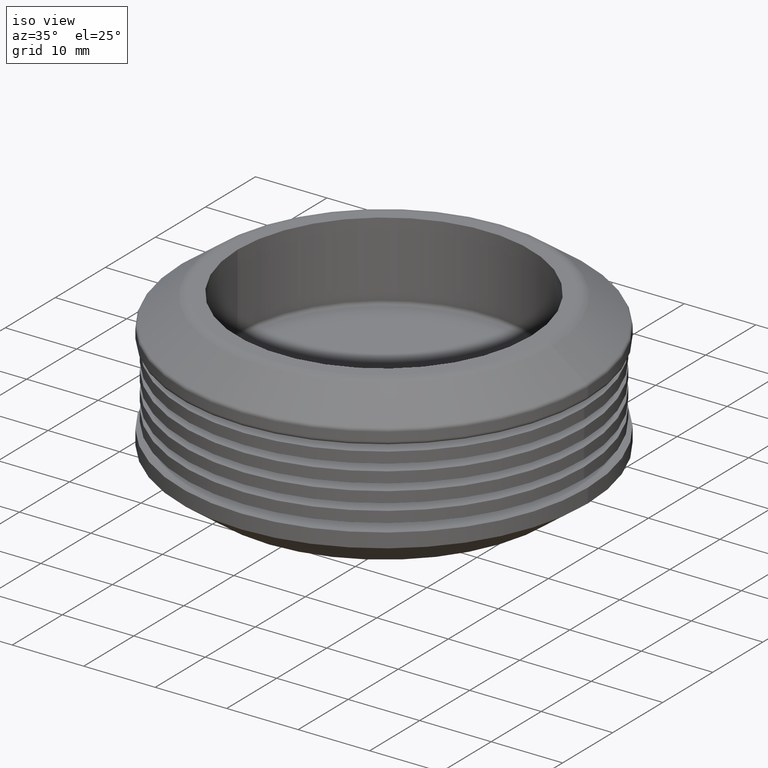
[diagram: clean part render]
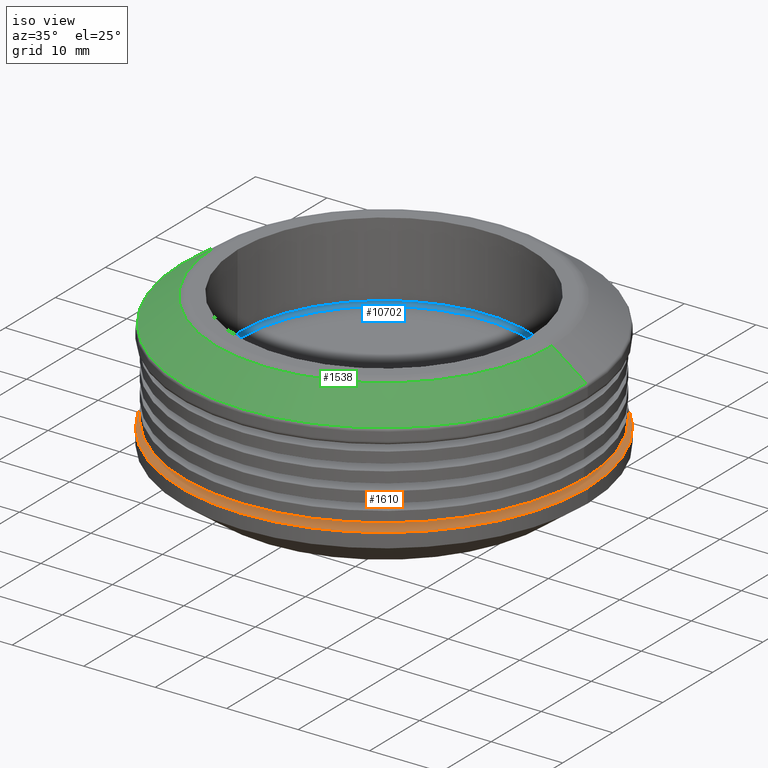
[diagram: same view with three faces highlighted in distinct colors, each labeled with its STEP entity id]
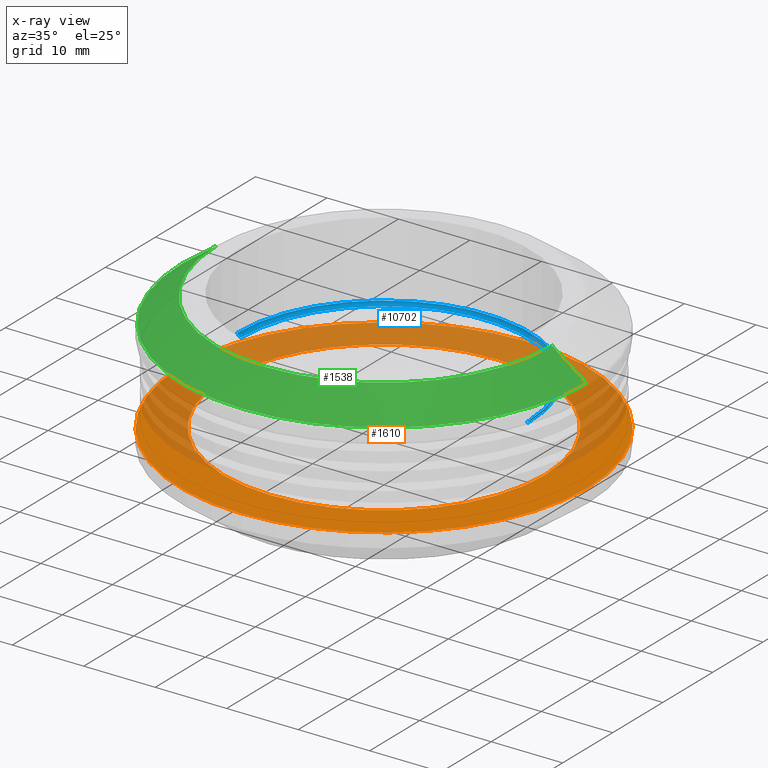
[diagram: x-ray of the same camera — body ghosted, the three highlighted faces saturated]
A machine part, iso view with three faces highlighted in distinct colors.
The next image is the same camera in x-ray (body ghosted, the three faces saturated) — at least one of them is partly hidden behind the body in this view.
Their STEP definitions:

[orange] entity #1610 — the highlighted planar face has unit normal (0, 0, 1).
#51 = CARTESIAN_POINT ( 'NONE',  ( -28.50000000000000000, 0.0000000000000000000, -4.999999999999999100 ) ) ;
#499 = DIRECTION ( 'NONE',  ( -0.0000000000000000000, -0.0000000000000000000, -1.000000000000000000 ) ) ;
#830 = CARTESIAN_POINT ( 'NONE',  ( 0.0000000000000000000, 0.0000000000000000000, -4.999999999999999100 ) ) ;
#891 = ORIENTED_EDGE ( 'NONE', *, *, #6009, .F. ) ;
#933 = CIRCLE ( 'NONE', #14101, 22.50000000000000000 ) ;
#1235 = VERTEX_POINT ( 'NONE', #51 ) ;
#1339 = ORIENTED_EDGE ( 'NONE', *, *, #11088, .F. ) ;
#1484 = CARTESIAN_POINT ( 'NONE',  ( 0.0000000000000000000, 0.0000000000000000000, -4.999999999999999100 ) ) ;
#1610 = ADVANCED_FACE ( 'NONE', ( #1790, #4513 ), #9835, .T. ) ;
#1617 = DIRECTION ( 'NONE',  ( -1.000000000000000000, 0.0000000000000000000, 0.0000000000000000000 ) ) ;
#1741 = CARTESIAN_POINT ( 'NONE',  ( 28.50000000000000000, 3.490243377569956500E-015, -4.999999999999999100 ) ) ;
#1790 = FACE_BOUND ( 'NONE', #1848, .T. ) ;
#1797 = VERTEX_POINT ( 'NONE', #8057 ) ;
#1848 = EDGE_LOOP ( 'NONE', ( #5798, #12766 ) ) ;
#2405 = DIRECTION ( 'NONE',  ( -0.0000000000000000000, -0.0000000000000000000, -1.000000000000000000 ) ) ;
#2666 = DIRECTION ( 'NONE',  ( -1.000000000000000000, 0.0000000000000000000, 0.0000000000000000000 ) ) ;
#3496 = CIRCLE ( 'NONE', #14279, 28.50000000000000000 ) ;
#3521 = CARTESIAN_POINT ( 'NONE',  ( 22.50000000000000000, 2.755455298081544800E-015, -4.999999999999996400 ) ) ;
#3625 = DIRECTION ( 'NONE',  ( -1.000000000000000000, 0.0000000000000000000, 0.0000000000000000000 ) ) ;
#4513 = FACE_OUTER_BOUND ( 'NONE', #4758, .T. ) ;
#4758 = EDGE_LOOP ( 'NONE', ( #891, #1339 ) ) ;
#4991 = CARTESIAN_POINT ( 'NONE',  ( 0.0000000000000000000, 0.0000000000000000000, -4.999999999999996400 ) ) ;
#5227 = DIRECTION ( 'NONE',  ( 0.0000000000000000000, 0.0000000000000000000, 1.000000000000000000 ) ) ;
#5798 = ORIENTED_EDGE ( 'NONE', *, *, #13762, .T. ) ;
#6009 = EDGE_CURVE ( 'NONE', #1235, #13180, #9125, .T. ) ;
#7159 = CARTESIAN_POINT ( 'NONE',  ( 0.0000000000000000000, 0.0000000000000000000, -4.999999999999996400 ) ) ;
#7445 = EDGE_CURVE ( 'NONE', #12323, #1797, #11782, .T. ) ;
#7663 = DIRECTION ( 'NONE',  ( -0.0000000000000000000, -0.0000000000000000000, -1.000000000000000000 ) ) ;
#8057 = CARTESIAN_POINT ( 'NONE',  ( -22.50000000000000000, 0.0000000000000000000, -4.999999999999996400 ) ) ;
#9125 = CIRCLE ( 'NONE', #11663, 28.50000000000000000 ) ;
#9146 = AXIS2_PLACEMENT_3D ( 'NONE', #10991, #5227, #9979 ) ;
#9535 = DIRECTION ( 'NONE',  ( -0.0000000000000000000, -0.0000000000000000000, -1.000000000000000000 ) ) ;
#9835 = PLANE ( 'NONE',  #9146 ) ;
#9979 = DIRECTION ( 'NONE',  ( 1.000000000000000000, 0.0000000000000000000, -0.0000000000000000000 ) ) ;
#9981 = DIRECTION ( 'NONE',  ( -1.000000000000000000, 0.0000000000000000000, 0.0000000000000000000 ) ) ;
#10716 = AXIS2_PLACEMENT_3D ( 'NONE', #7159, #9535, #2666 ) ;
#10991 = CARTESIAN_POINT ( 'NONE',  ( 0.0000000000000000000, 22.50000000000000000, -4.999999999999997300 ) ) ;
#11088 = EDGE_CURVE ( 'NONE', #13180, #1235, #3496, .T. ) ;
#11663 = AXIS2_PLACEMENT_3D ( 'NONE', #1484, #2405, #3625 ) ;
#11782 = CIRCLE ( 'NONE', #10716, 22.50000000000000000 ) ;
#12323 = VERTEX_POINT ( 'NONE', #3521 ) ;
#12766 = ORIENTED_EDGE ( 'NONE', *, *, #7445, .T. ) ;
#13180 = VERTEX_POINT ( 'NONE', #1741 ) ;
#13762 = EDGE_CURVE ( 'NONE', #1797, #12323, #933, .T. ) ;
#14101 = AXIS2_PLACEMENT_3D ( 'NONE', #4991, #499, #1617 ) ;
#14279 = AXIS2_PLACEMENT_3D ( 'NONE', #830, #7663, #9981 ) ;

[blue] entity #10702 — the highlighted toroidal blend (fillet) surface has major radius 20 mm and minor (blend) radius 0.5 mm.
#116 = CARTESIAN_POINT ( 'NONE',  ( 0.0000000000000000000, 0.0000000000000000000, 1.500000000000000900 ) ) ;
#720 = VERTEX_POINT ( 'NONE', #3278 ) ;
#2245 = EDGE_CURVE ( 'NONE', #12815, #10334, #14889, .T. ) ;
#2385 = ORIENTED_EDGE ( 'NONE', *, *, #13290, .F. ) ;
#2470 = AXIS2_PLACEMENT_3D ( 'NONE', #7677, #14634, #8937 ) ;
#3219 = DIRECTION ( 'NONE',  ( 1.224646799147353200E-016, 1.000000000000000000, -0.0000000000000000000 ) ) ;
#3278 = CARTESIAN_POINT ( 'NONE',  ( -20.49999999999999600, 0.0000000000000000000, 1.500000000000000900 ) ) ;
#3633 = DIRECTION ( 'NONE',  ( 0.0000000000000000000, 0.0000000000000000000, -1.000000000000000000 ) ) ;
#4394 = TOROIDAL_SURFACE ( 'NONE', #2470, 19.99999999999999600, 0.5000000000000000000 ) ;
#5388 = VERTEX_POINT ( 'NONE', #11292 ) ;
#5455 = DIRECTION ( 'NONE',  ( 0.0000000000000000000, 0.0000000000000000000, 1.000000000000000000 ) ) ;
#5509 = CARTESIAN_POINT ( 'NONE',  ( 0.0000000000000000000, 0.0000000000000000000, 1.000000000000000900 ) ) ;
#5814 = EDGE_CURVE ( 'NONE', #10334, #720, #6609, .T. ) ;
#5945 = AXIS2_PLACEMENT_3D ( 'NONE', #116, #7005, #10540 ) ;
#6609 = CIRCLE ( 'NONE', #13769, 0.5000000000000004400 ) ;
#6740 = CIRCLE ( 'NONE', #9947, 0.5000000000000000000 ) ;
#7005 = DIRECTION ( 'NONE',  ( -0.0000000000000000000, -0.0000000000000000000, -1.000000000000000000 ) ) ;
#7224 = CARTESIAN_POINT ( 'NONE',  ( 19.99999999999999600, 0.0000000000000000000, 1.000000000000000900 ) ) ;
#7677 = CARTESIAN_POINT ( 'NONE',  ( 0.0000000000000000000, 0.0000000000000000000, 1.500000000000000900 ) ) ;
#8145 = CARTESIAN_POINT ( 'NONE',  ( -19.99999999999999600, 2.479909768273390300E-015, 1.000000000000000900 ) ) ;
#8624 = ORIENTED_EDGE ( 'NONE', *, *, #9347, .T. ) ;
#8937 = DIRECTION ( 'NONE',  ( 1.000000000000000000, 0.0000000000000000000, 0.0000000000000000000 ) ) ;
#9347 = EDGE_CURVE ( 'NONE', #12815, #5388, #6740, .T. ) ;
#9352 = AXIS2_PLACEMENT_3D ( 'NONE', #5509, #5455, #14658 ) ;
#9616 = EDGE_LOOP ( 'NONE', ( #10689, #11249, #8624, #2385 ) ) ;
#9937 = CARTESIAN_POINT ( 'NONE',  ( -19.99999999999999600, 2.449293598294706100E-015, 1.500000000000000900 ) ) ;
#9947 = AXIS2_PLACEMENT_3D ( 'NONE', #14037, #11733, #3633 ) ;
#10317 = CIRCLE ( 'NONE', #5945, 20.49999999999999600 ) ;
#10334 = VERTEX_POINT ( 'NONE', #8145 ) ;
#10540 = DIRECTION ( 'NONE',  ( 1.000000000000000000, 0.0000000000000000000, 0.0000000000000000000 ) ) ;
#10689 = ORIENTED_EDGE ( 'NONE', *, *, #5814, .F. ) ;
#10702 = ADVANCED_FACE ( 'NONE', ( #10874 ), #4394, .F. ) ;
#10874 = FACE_OUTER_BOUND ( 'NONE', #9616, .T. ) ;
#11093 = DIRECTION ( 'NONE',  ( -1.000000000000000000, 1.224646799147349500E-016, 0.0000000000000000000 ) ) ;
#11249 = ORIENTED_EDGE ( 'NONE', *, *, #2245, .F. ) ;
#11292 = CARTESIAN_POINT ( 'NONE',  ( 20.49999999999999600, 2.510525938252074100E-015, 1.500000000000000900 ) ) ;
#11733 = DIRECTION ( 'NONE',  ( 0.0000000000000000000, -1.000000000000000000, 0.0000000000000000000 ) ) ;
#12815 = VERTEX_POINT ( 'NONE', #7224 ) ;
#13290 = EDGE_CURVE ( 'NONE', #720, #5388, #10317, .T. ) ;
#13769 = AXIS2_PLACEMENT_3D ( 'NONE', #9937, #3219, #11093 ) ;
#14037 = CARTESIAN_POINT ( 'NONE',  ( 19.99999999999999600, 0.0000000000000000000, 1.500000000000000900 ) ) ;
#14634 = DIRECTION ( 'NONE',  ( 0.0000000000000000000, 0.0000000000000000000, 1.000000000000000000 ) ) ;
#14658 = DIRECTION ( 'NONE',  ( 1.000000000000000000, 0.0000000000000000000, 0.0000000000000000000 ) ) ;
#14889 = CIRCLE ( 'NONE', #9352, 19.99999999999999600 ) ;

[green] entity #1538 — the highlighted conical surface has half-angle 53.973 deg.
#22 = ORIENTED_EDGE ( 'NONE', *, *, #4539, .T. ) ;
#148 = DIRECTION ( 'NONE',  ( 1.000000000000000000, 0.0000000000000000000, 0.0000000000000000000 ) ) ;
#502 = DIRECTION ( 'NONE',  ( -0.8087360843031886600, 0.0000000000000000000, -0.5881716976750459600 ) ) ;
#548 = DIRECTION ( 'NONE',  ( 0.0000000000000000000, 0.0000000000000000000, -1.000000000000000000 ) ) ;
#636 = DIRECTION ( 'NONE',  ( 0.8087360843031886600, 9.904160569968640200E-017, -0.5881716976750459600 ) ) ;
#1416 = DIRECTION ( 'NONE',  ( -0.0000000000000000000, -0.0000000000000000000, 1.000000000000000000 ) ) ;
#1538 = ADVANCED_FACE ( 'NONE', ( #14019 ), #3082, .T. ) ;
#2305 = ORIENTED_EDGE ( 'NONE', *, *, #6279, .T. ) ;
#2847 = DIRECTION ( 'NONE',  ( 1.000000000000000000, 0.0000000000000000000, 0.0000000000000000000 ) ) ;
#3082 = CONICAL_SURFACE ( 'NONE', #12990, 28.50000000000000000, 0.9420000403794639400 ) ;
#3119 = EDGE_CURVE ( 'NONE', #7819, #12081, #4844, .T. ) ;
#3603 = CARTESIAN_POINT ( 'NONE',  ( 0.0000000000000000000, 0.0000000000000000000, -0.8502442537000158800 ) ) ;
#3732 = CARTESIAN_POINT ( 'NONE',  ( -23.52597576816623400, 0.0000000000000000000, 2.617472168606378000 ) ) ;
#4009 = LINE ( 'NONE', #9571, #13860 ) ;
#4280 = CIRCLE ( 'NONE', #12615, 28.29408584883752600 ) ;
#4452 = AXIS2_PLACEMENT_3D ( 'NONE', #11058, #548, #2847 ) ;
#4539 = EDGE_CURVE ( 'NONE', #7419, #12081, #4280, .T. ) ;
#4844 = LINE ( 'NONE', #10765, #5759 ) ;
#5326 = CARTESIAN_POINT ( 'NONE',  ( 0.0000000000000000000, 0.0000000000000000000, -0.9999999999999974500 ) ) ;
#5370 = DIRECTION ( 'NONE',  ( 0.0000000000000000000, 0.0000000000000000000, -1.000000000000000000 ) ) ;
#5759 = VECTOR ( 'NONE', #636, 1000.000000000000000 ) ;
#6279 = EDGE_CURVE ( 'NONE', #7819, #9370, #7133, .T. ) ;
#6514 = DIRECTION ( 'NONE',  ( -1.000000000000000000, 0.0000000000000000000, 0.0000000000000000000 ) ) ;
#7133 = CIRCLE ( 'NONE', #4452, 23.52597576816623400 ) ;
#7419 = VERTEX_POINT ( 'NONE', #10593 ) ;
#7520 = CARTESIAN_POINT ( 'NONE',  ( 28.29408584883752600, 3.465026166957929600E-015, -0.8502442537000158800 ) ) ;
#7819 = VERTEX_POINT ( 'NONE', #13674 ) ;
#9370 = VERTEX_POINT ( 'NONE', #3732 ) ;
#9507 = ORIENTED_EDGE ( 'NONE', *, *, #3119, .F. ) ;
#9571 = CARTESIAN_POINT ( 'NONE',  ( -28.50000000000000000, 0.0000000000000000000, -0.9999999999999974500 ) ) ;
#10346 = EDGE_LOOP ( 'NONE', ( #9507, #2305, #12914, #22 ) ) ;
#10593 = CARTESIAN_POINT ( 'NONE',  ( -28.29408584883752600, 0.0000000000000000000, -0.8502442537000158800 ) ) ;
#10765 = CARTESIAN_POINT ( 'NONE',  ( 28.50000000000000000, 3.490243377569956500E-015, -0.9999999999999974500 ) ) ;
#11058 = CARTESIAN_POINT ( 'NONE',  ( 0.0000000000000000000, 0.0000000000000000000, 2.617472168606378000 ) ) ;
#12081 = VERTEX_POINT ( 'NONE', #7520 ) ;
#12615 = AXIS2_PLACEMENT_3D ( 'NONE', #3603, #1416, #148 ) ;
#12914 = ORIENTED_EDGE ( 'NONE', *, *, #14646, .T. ) ;
#12990 = AXIS2_PLACEMENT_3D ( 'NONE', #5326, #5370, #6514 ) ;
#13674 = CARTESIAN_POINT ( 'NONE',  ( 23.52597576816623400, 3.173063629544113400E-015, 2.617472168606378000 ) ) ;
#13860 = VECTOR ( 'NONE', #502, 1000.000000000000000 ) ;
#14019 = FACE_OUTER_BOUND ( 'NONE', #10346, .T. ) ;
#14646 = EDGE_CURVE ( 'NONE', #9370, #7419, #4009, .T. ) ;